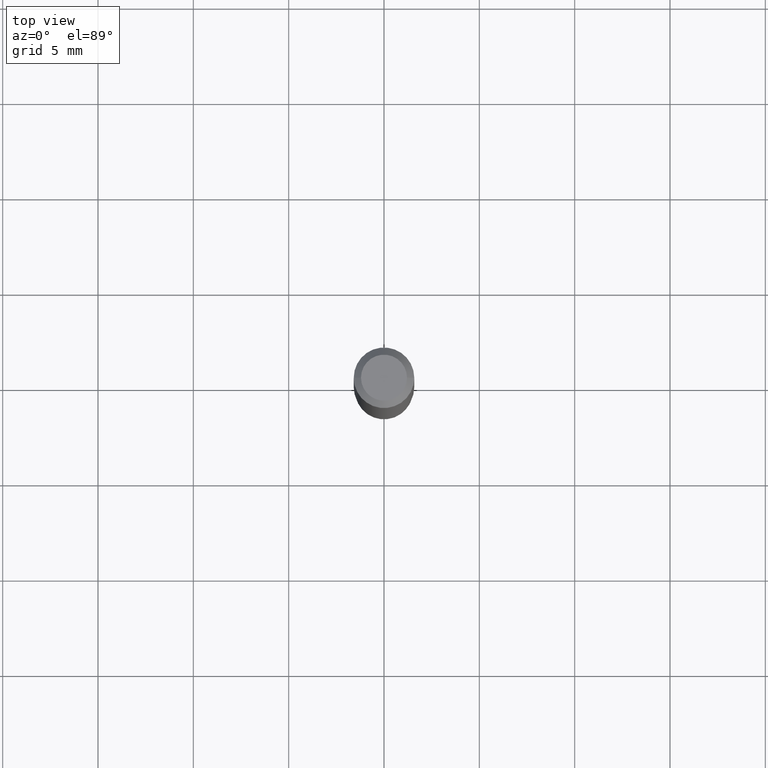
[diagram: clean part render]
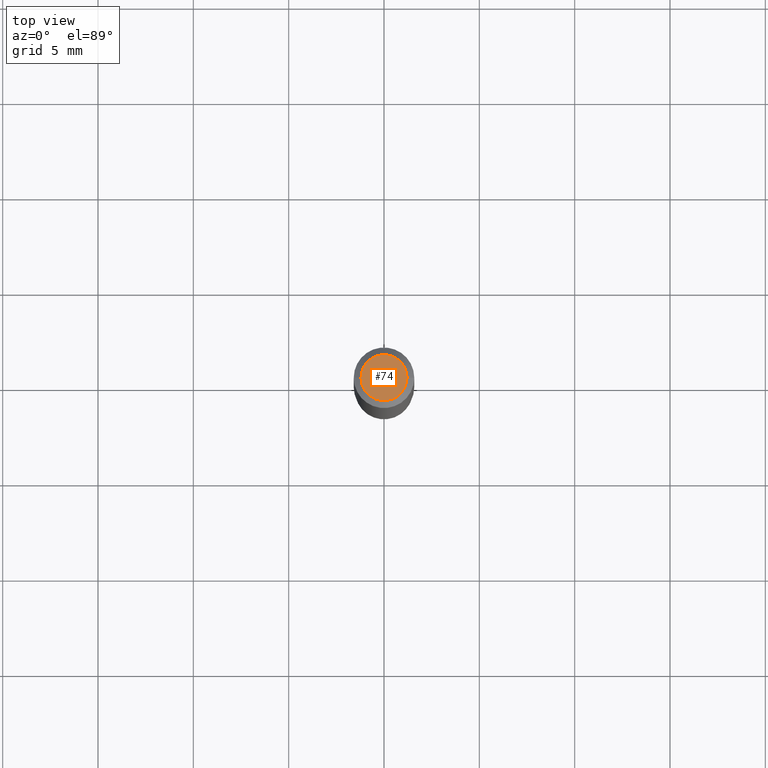
[diagram: same view with one face highlighted and labeled with its STEP entity id]
A machine part, top view. The second image highlights one B-rep face of the part: STEP entity #74.
In plain terms, the highlighted planar face has unit normal (0, -0, -1).
Its self-contained STEP definition (entity closure, byte-faithful):
#23 = CARTESIAN_POINT ( 'NONE',  ( -6.680649051745406845E-45, 9.538196290434862081E-31, 2.731847993664263218E-16 ) ) ;
#55 = DIRECTION ( 'NONE',  ( 2.438088387897960049E-29, -3.491481338843145188E-15, -1.000000000000000000 ) ) ;
#56 = CARTESIAN_POINT ( 'NONE',  ( -0.04750000000000000749, 3.578768372314221353E-16, 2.731847993664239060E-16 ) ) ;
#63 = CIRCLE ( 'NONE', #440, 0.04750000000000000749 ) ;
#74 = ADVANCED_FACE ( 'NONE', ( #256 ), #421, .F. ) ;
#84 = AXIS2_PLACEMENT_3D ( 'NONE', #214, #55, #381 ) ;
#99 = DIRECTION ( 'NONE',  ( -2.445468806185136597E-29, 3.491481338843145583E-15, 1.000000000000000000 ) ) ;
#106 = CIRCLE ( 'NONE', #398, 0.04750000000000000749 ) ;
#122 = EDGE_CURVE ( 'NONE', #188, #276, #106, .T. ) ;
#159 = EDGE_LOOP ( 'NONE', ( #471, #435 ) ) ;
#188 = VERTEX_POINT ( 'NONE', #56 ) ;
#214 = CARTESIAN_POINT ( 'NONE',  ( 3.316907271900976589E-16, 0.04750000000000000749, -2.925296391183627249E-17 ) ) ;
#256 = FACE_OUTER_BOUND ( 'NONE', #159, .T. ) ;
#276 = VERTEX_POINT ( 'NONE', #498 ) ;
#301 = CARTESIAN_POINT ( 'NONE',  ( -6.680649051745406845E-45, 9.538196290434862081E-31, 2.731847993664263218E-16 ) ) ;
#348 = DIRECTION ( 'NONE',  ( -2.445468806185136597E-29, 3.491481338843145583E-15, 1.000000000000000000 ) ) ;
#381 = DIRECTION ( 'NONE',  ( -1.000000000000000000, 6.982962677686265922E-15, -4.876176775795935793E-29 ) ) ;
#389 = EDGE_CURVE ( 'NONE', #276, #188, #63, .T. ) ;
#398 = AXIS2_PLACEMENT_3D ( 'NONE', #301, #99, #467 ) ;
#421 = PLANE ( 'NONE',  #84 ) ;
#435 = ORIENTED_EDGE ( 'NONE', *, *, #389, .T. ) ;
#440 = AXIS2_PLACEMENT_3D ( 'NONE', #23, #348, #501 ) ;
#467 = DIRECTION ( 'NONE',  ( 1.000000000000000000, -6.982962677686266711E-15, 4.852736867747365086E-29 ) ) ;
#471 = ORIENTED_EDGE ( 'NONE', *, *, #122, .T. ) ;
#498 = CARTESIAN_POINT ( 'NONE',  ( 0.04750000000000000749, -4.035134999187568762E-16, 2.731847993664288856E-16 ) ) ;
#501 = DIRECTION ( 'NONE',  ( 1.000000000000000000, -6.982962677686266711E-15, 4.852736867747365086E-29 ) ) ;